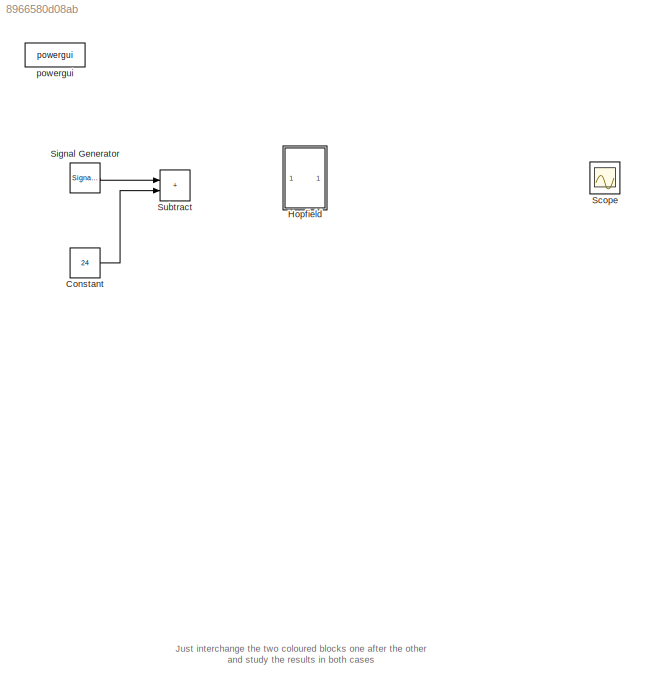
MODEL slx_8966580d08ab
KIND model
CONFIG AbsTol = auto
CONFIG EnableMultiTasking = on
CONFIG FixedStep = auto
CONFIG MaxStep = auto
CONFIG MinStep = auto
CONFIG RelTol = 1e-3
CONFIG SampleTimeConstraint = Unconstrained
CONFIG SolverName = ode23tb
CONFIG StartTime = 0.0
CONFIG StopTime = 1
BLOCK [Constant] Constant
  Value = 24
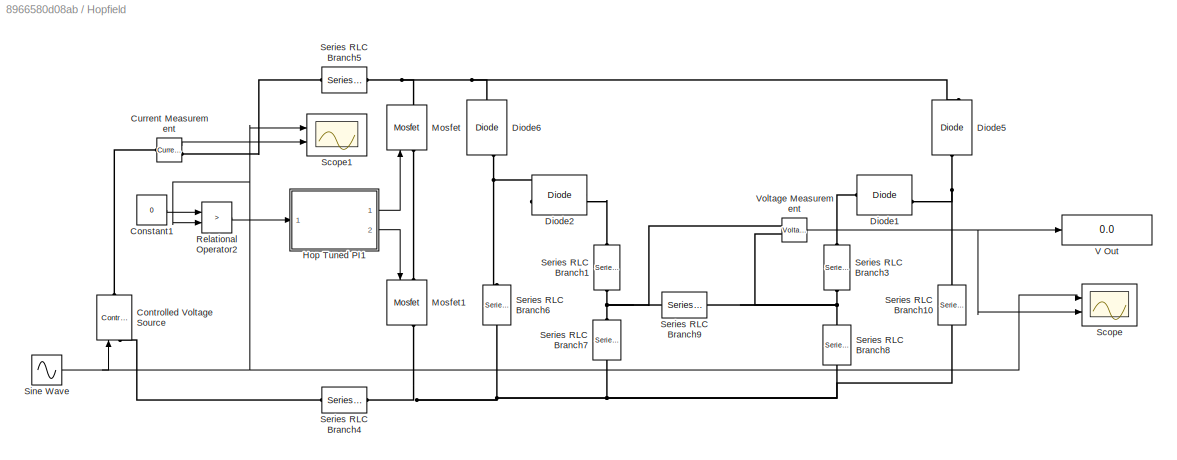
BLOCK [SubSystem] Hopfield
  Ports = []
  RequestExecContextInheritance = off
BLOCK [Constant] Hopfield/Constant1
  Value = 0
BLOCK [Reference] Hopfield/Controlled Voltage Source  REF=spsControlledVoltageSourceLib/Controlled Voltage Source
  Ports = [1, 0, 0, 0, 0, 1, 1]
  SourceBlock = spsControlledVoltageSourceLib/Controlled Voltage Source
  SourceProductBaseCode = PS
  SourceType = Controlled Voltage Source
BLOCK [Reference] Hopfield/Current Measurement  REF=spsCurrentMeasurementLib/Current Measurement
  Ports = [0, 1, 0, 0, 0, 1, 1]
  SourceBlock = spsCurrentMeasurementLib/Current Measurement
  SourceProductBaseCode = PS
  SourceType = Current Measurement
BLOCK [Reference] Hopfield/Diode1  REF=spsDiodeLib/Diode
  NameLocation = top
  Ports = [0, 1, 0, 0, 0, 1, 1]
  SourceBlock = spsDiodeLib/Diode
  SourceProductBaseCode = PS
  SourceType = Diode
BLOCK [Reference] Hopfield/Diode2  REF=spsDiodeLib/Diode
  Ports = [0, 1, 0, 0, 0, 1, 1]
  SourceBlock = spsDiodeLib/Diode
  SourceProductBaseCode = PS
  SourceType = Diode
BLOCK [Reference] Hopfield/Diode5  REF=spsDiodeLib/Diode
  NameLocation = left
  Ports = [0, 1, 0, 0, 0, 1, 1]
  SourceBlock = spsDiodeLib/Diode
  SourceProductBaseCode = PS
  SourceType = Diode
BLOCK [Reference] Hopfield/Diode6  REF=spsDiodeLib/Diode
  NameLocation = left
  Ports = [0, 1, 0, 0, 0, 1, 1]
  SourceBlock = spsDiodeLib/Diode
  SourceProductBaseCode = PS
  SourceType = Diode
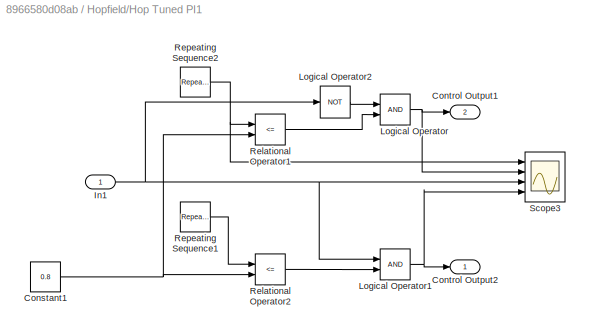
BLOCK [SubSystem] Hopfield/Hop Tuned PI1
  Ports = [1, 2]
  RequestExecContextInheritance = off
BLOCK [Constant] Hopfield/Hop Tuned PI1/Constant1
  Value = 0.8
BLOCK [Outport] Hopfield/Hop Tuned PI1/Control Output1
  Port = 2
BLOCK [Outport] Hopfield/Hop Tuned PI1/Control Output2
BLOCK [Inport] Hopfield/Hop Tuned PI1/In1
BLOCK [Logic] Hopfield/Hop Tuned PI1/Logical Operator
  AllPortsSameDT = off
  OutDataTypeStr = boolean
  Ports = [2, 1]
BLOCK [Logic] Hopfield/Hop Tuned PI1/Logical Operator1
  AllPortsSameDT = off
  OutDataTypeStr = boolean
  Ports = [2, 1]
BLOCK [Logic] Hopfield/Hop Tuned PI1/Logical Operator2
  AllPortsSameDT = off
  Operator = NOT
  OutDataTypeStr = boolean
  Ports = [1, 1]
BLOCK [RelationalOperator] Hopfield/Hop Tuned PI1/Relational Operator1
  InputSameDT = off
  Operator = <=
  OutDataTypeStr = boolean
  Ports = [2, 1]
BLOCK [RelationalOperator] Hopfield/Hop Tuned PI1/Relational Operator2
  InputSameDT = off
  Operator = <=
  OutDataTypeStr = boolean
  Ports = [2, 1]
BLOCK [Reference] Hopfield/Hop Tuned PI1/Repeating Sequence1  REF=simulink/Sources/Repeating
Sequence
  Ports = [0, 1]
  SourceBlock = simulink/Sources/Repeating\nSequence
  SourceProductBaseCode = SL
  SourceType = Repeating table
BLOCK [Reference] Hopfield/Hop Tuned PI1/Repeating Sequence2  REF=simulink/Sources/Repeating
Sequence
  Ports = [0, 1]
  SourceBlock = simulink/Sources/Repeating\nSequence
  SourceProductBaseCode = SL
  SourceType = Repeating table
BLOCK [Scope] Hopfield/Hop Tuned PI1/Scope3
  Floating = off
  NumInputPorts = 4
  Ports = [4]
  ScopeSpecificationString = Simulink.scopes.TimeScopeBlockCfg('CurrentConfiguration', extmgr.ConfigurationSet(extmgr.Configuration('Core','General UI',true),extmgr.Configuration('Core','Source UI',true),extmgr.Configuration('Sources','WiredSimulink',true,'DataLoggingVariableName','Scope','DataLoggingSaveFormat','StructureWithTime','DataLoggingDecimation','1','DataLoggingDecimateData',true,'DataLogging',true),extmgr.Configura...<+3700ch>
BLOCK [Reference] Hopfield/Mosfet  REF=spsMosfetLib/Mosfet
  NameLocation = right
  Ports = [1, 1, 0, 0, 0, 1, 1]
  SourceBlock = spsMosfetLib/Mosfet
  SourceProductBaseCode = PS
  SourceType = Mosfet
BLOCK [Reference] Hopfield/Mosfet1  REF=spsMosfetLib/Mosfet
  NameLocation = left
  Ports = [1, 1, 0, 0, 0, 1, 1]
  SourceBlock = spsMosfetLib/Mosfet
  SourceProductBaseCode = PS
  SourceType = Mosfet
BLOCK [RelationalOperator] Hopfield/Relational Operator2
  InputSameDT = off
  Operator = >
  OutDataTypeStr = boolean
  Ports = [2, 1]
BLOCK [Scope] Hopfield/Scope
  Floating = off
  NumInputPorts = 2
  Ports = [2]
  ScopeSpecificationString = Simulink.scopes.TimeScopeBlockCfg('CurrentConfiguration', extmgr.ConfigurationSet(extmgr.Configuration('Core','General UI',true),extmgr.Configuration('Core','Source UI',true),extmgr.Configuration('Sources','WiredSimulink',true,'DataLoggingSaveFormat','StructureWithTime','DataLoggingDecimation','1','DataLoggingDecimateData',true),extmgr.Configuration('Visuals','Time Domain',true,'SerializedDisplays...<+2245ch>
BLOCK [Scope] Hopfield/Scope1
  Floating = off
  NumInputPorts = 2
  Ports = [2]
  ScopeSpecificationString = Simulink.scopes.TimeScopeBlockCfg('CurrentConfiguration', extmgr.ConfigurationSet(extmgr.Configuration('Core','General UI',true),extmgr.Configuration('Core','Source UI',true),extmgr.Configuration('Sources','WiredSimulink',true,'DataLoggingSaveFormat','StructureWithTime','DataLoggingDecimation','1','DataLoggingDecimateData',true,'DataLoggingVariableName','ScopeData1'),extmgr.Configuration('Visuals'...<+2374ch>
BLOCK [Reference] Hopfield/Series RLC Branch1  REF=spsSeriesRLCBranchLib/Series RLC Branch
  NameLocation = left
  Ports = [0, 0, 0, 0, 0, 1, 1]
  SourceBlock = spsSeriesRLCBranchLib/Series RLC Branch
  SourceProductBaseCode = PS
  SourceType = Series RLC Branch
BLOCK [Reference] Hopfield/Series RLC Branch10  REF=spsSeriesRLCBranchLib/Series RLC Branch
  NameLocation = left
  Ports = [0, 0, 0, 0, 0, 1, 1]
  SourceBlock = spsSeriesRLCBranchLib/Series RLC Branch
  SourceProductBaseCode = PS
  SourceType = Series RLC Branch
BLOCK [Reference] Hopfield/Series RLC Branch3  REF=spsSeriesRLCBranchLib/Series RLC Branch
  NameLocation = left
  Ports = [0, 0, 0, 0, 0, 1, 1]
  SourceBlock = spsSeriesRLCBranchLib/Series RLC Branch
  SourceProductBaseCode = PS
  SourceType = Series RLC Branch
BLOCK [Reference] Hopfield/Series RLC Branch4  REF=spsSeriesRLCBranchLib/Series RLC Branch
  Ports = [0, 0, 0, 0, 0, 1, 1]
  SourceBlock = spsSeriesRLCBranchLib/Series RLC Branch
  SourceProductBaseCode = PS
  SourceType = Series RLC Branch
BLOCK [Reference] Hopfield/Series RLC Branch5  REF=spsSeriesRLCBranchLib/Series RLC Branch
  NameLocation = top
  Ports = [0, 0, 0, 0, 0, 1, 1]
  SourceBlock = spsSeriesRLCBranchLib/Series RLC Branch
  SourceProductBaseCode = PS
  SourceType = Series RLC Branch
BLOCK [Reference] Hopfield/Series RLC Branch6  REF=spsSeriesRLCBranchLib/Series RLC Branch
  NameLocation = left
  Ports = [0, 0, 0, 0, 0, 1, 1]
  SourceBlock = spsSeriesRLCBranchLib/Series RLC Branch
  SourceProductBaseCode = PS
  SourceType = Series RLC Branch
BLOCK [Reference] Hopfield/Series RLC Branch7  REF=spsSeriesRLCBranchLib/Series RLC Branch
  NameLocation = left
  Ports = [0, 0, 0, 0, 0, 1, 1]
  SourceBlock = spsSeriesRLCBranchLib/Series RLC Branch
  SourceProductBaseCode = PS
  SourceType = Series RLC Branch
BLOCK [Reference] Hopfield/Series RLC Branch8  REF=spsSeriesRLCBranchLib/Series RLC Branch
  NameLocation = left
  Ports = [0, 0, 0, 0, 0, 1, 1]
  SourceBlock = spsSeriesRLCBranchLib/Series RLC Branch
  SourceProductBaseCode = PS
  SourceType = Series RLC Branch
BLOCK [Reference] Hopfield/Series RLC Branch9  REF=spsSeriesRLCBranchLib/Series RLC Branch
  NameLocation = top
  Ports = [0, 0, 0, 0, 0, 1, 1]
  SourceBlock = spsSeriesRLCBranchLib/Series RLC Branch
  SourceProductBaseCode = PS
  SourceType = Series RLC Branch
BLOCK [Sin] Hopfield/Sine Wave
  Amplitude = 24
  Frequency = 2*(22/7)*100
  Ports = [0, 1]
  SampleTime = 0
BLOCK [Display] Hopfield/V Out
  Decimation = 1
  Ports = [1]
BLOCK [Reference] Hopfield/Voltage Measurement  REF=spsVoltageMeasurementLib/Voltage Measurement
  Ports = [0, 1, 0, 0, 0, 2]
  SourceBlock = spsVoltageMeasurementLib/Voltage Measurement
  SourceProductBaseCode = PS
  SourceType = Voltage Measurement
BLOCK [Scope] Scope
  Floating = off
  NumInputPorts = 1
  Ports = [1]
  ScopeSpecificationString = C++SS(StrPVP('Location','[1, 49, 1367, 727]'),StrPVP('Open','off'),MxPVP('AxesTitles',54,'struct(''axes1'',''%<SignalLabel>'')'),StrPVP('YMin','7.5'),StrPVP('YMax','40'),StrPVP('SaveName','ScopeData2'),StrPVP('DataFormat','StructureWithTime'),StrPVP('BlockParamSampleTime','0'),StrPVP('LimitDataPoints','on'),StrPVP('Decimation','1'),StrPVP('BlockParamSampleInput','off'))
BLOCK [SignalGenerator] Signal Generator
  Amplitude = 15
  Frequency = 3
  Ports = [0, 1]
  WaveForm = square
BLOCK [Sum] Subtract
  IconShape = rectangular
  Ports = [2, 1]
BLOCK [Reference] powergui  REF=spspowerguiLib/powergui
  Ports = []
  SourceBlock = spspowerguiLib/powergui
  SourceProductBaseCode = PS
  SourceType = PSB option menu block
ANNOTATION (root): Just interchange the two coloured blocks one after the other and study the results in both cases
LINE Constant:1 -> Subtract:2
LINE Hopfield/Constant1:1 -> Hopfield/Relational Operator2:1
LINE Hopfield/Current Measurement:1 -> Hopfield/Scope1:2
NET Hopfield/Hop Tuned PI1/Constant1:1 -> Hopfield/Hop Tuned PI1/Relational Operator1:2, Hopfield/Hop Tuned PI1/Relational Operator2:2
NET Hopfield/Hop Tuned PI1/In1:1 -> Hopfield/Hop Tuned PI1/Logical Operator1:1, Hopfield/Hop Tuned PI1/Logical Operator2:1, Hopfield/Hop Tuned PI1/Scope3:3
NET Hopfield/Hop Tuned PI1/Logical Operator1:1 -> Hopfield/Hop Tuned PI1/Control Output2:1, Hopfield/Hop Tuned PI1/Scope3:4
LINE Hopfield/Hop Tuned PI1/Logical Operator2:1 -> Hopfield/Hop Tuned PI1/Logical Operator:1
NET Hopfield/Hop Tuned PI1/Logical Operator:1 -> Hopfield/Hop Tuned PI1/Control Output1:1, Hopfield/Hop Tuned PI1/Scope3:2
LINE Hopfield/Hop Tuned PI1/Relational Operator1:1 -> Hopfield/Hop Tuned PI1/Logical Operator:2
LINE Hopfield/Hop Tuned PI1/Relational Operator2:1 -> Hopfield/Hop Tuned PI1/Logical Operator1:2
LINE Hopfield/Hop Tuned PI1/Repeating Sequence1:1 -> Hopfield/Hop Tuned PI1/Relational Operator2:1
NET Hopfield/Hop Tuned PI1/Repeating Sequence2:1 -> Hopfield/Hop Tuned PI1/Relational Operator1:1, Hopfield/Hop Tuned PI1/Scope3:1
LINE Hopfield/Hop Tuned PI1:1 -> Hopfield/Mosfet:1
LINE Hopfield/Hop Tuned PI1:2 -> Hopfield/Mosfet1:1
LINE Hopfield/Relational Operator2:1 -> Hopfield/Hop Tuned PI1:1
NET Hopfield/Sine Wave:1 -> Hopfield/Controlled Voltage Source:1, Hopfield/Relational Operator2:2, Hopfield/Scope1:1, Hopfield/Scope:1
NET Hopfield/Voltage Measurement:1 -> Hopfield/Scope:2, Hopfield/V Out:1
LINE Signal Generator:1 -> Subtract:1
PLINE Hopfield/Controlled Voltage Source:LConn1 -- Hopfield/Series RLC Branch4:LConn1
PLINE Hopfield/Controlled Voltage Source:RConn1 -- Hopfield/Current Measurement:LConn1
PLINE Hopfield/Current Measurement:RConn1 -- Hopfield/Series RLC Branch5:RConn1
PLINE Hopfield/Diode1:LConn1 -- Hopfield/Series RLC Branch3:LConn1
PNET net1: Hopfield/Diode1:RConn1 -- Hopfield/Diode5:LConn1 -- Hopfield/Series RLC Branch10:LConn1
PNET net2: Hopfield/Diode2:LConn1 -- Hopfield/Diode6:RConn1 -- Hopfield/Series RLC Branch6:LConn1
PLINE Hopfield/Diode2:RConn1 -- Hopfield/Series RLC Branch1:LConn1
PNET net3: Hopfield/Diode5:RConn1 -- Hopfield/Diode6:LConn1 -- Hopfield/Mosfet:RConn1 -- Hopfield/Series RLC Branch5:LConn1
PLINE Hopfield/Mosfet1:LConn1 -- Hopfield/Mosfet:LConn1
PNET net4: Hopfield/Mosfet1:RConn1 -- Hopfield/Series RLC Branch10:RConn1 -- Hopfield/Series RLC Branch4:RConn1 -- Hopfield/Series RLC Branch6:RConn1 -- Hopfield/Series RLC Branch7:RConn1 -- Hopfield/Series RLC Branch8:LConn1
PNET net5: Hopfield/Series RLC Branch1:RConn1 -- Hopfield/Series RLC Branch7:LConn1 -- Hopfield/Series RLC Branch9:RConn1 -- Hopfield/Voltage Measurement:LConn1
PNET net6: Hopfield/Series RLC Branch3:RConn1 -- Hopfield/Series RLC Branch8:RConn1 -- Hopfield/Series RLC Branch9:LConn1 -- Hopfield/Voltage Measurement:LConn2
note: NET lines group one-source signal fan-out (src -> all destinations, sorted); 1:1 wires keep LINE; PNET lines group multi-terminal physical nets as a canonical sorted terminal list (undirected conserving connections); 2-terminal nets keep the pairwise PLINE form
